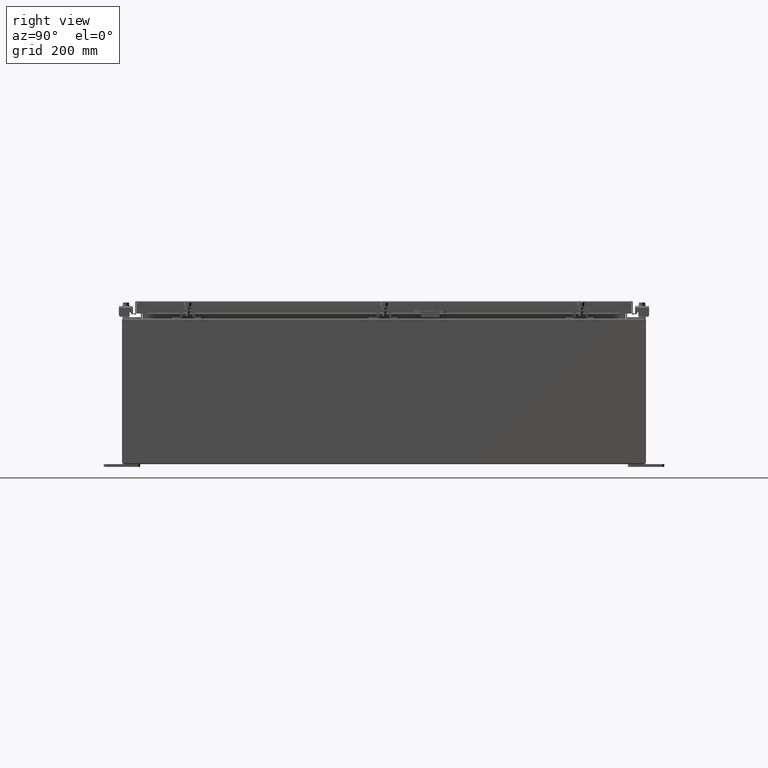
[diagram: clean part render]
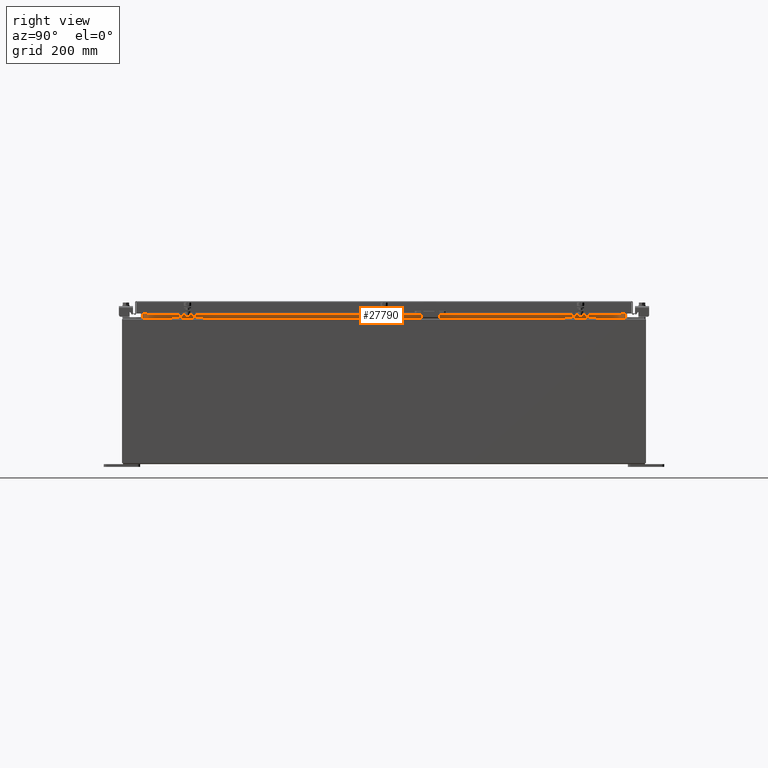
[diagram: same view with one face highlighted and labeled with its STEP entity id]
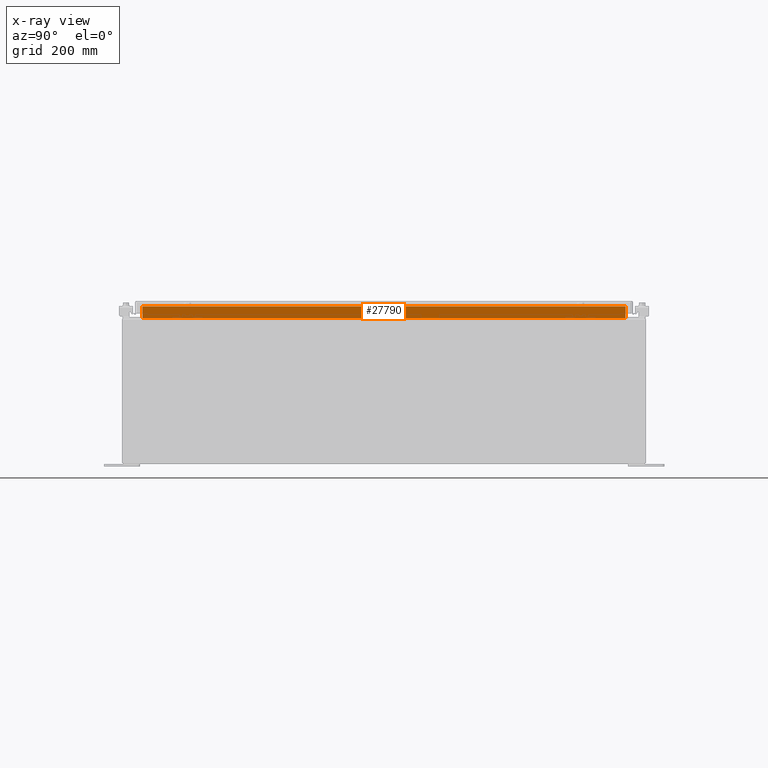
[diagram: x-ray of the same camera — body ghosted, the highlighted face saturated]
A machine part, right view. The second image highlights one B-rep face of the part: STEP entity #27790.
The next image is the same camera in x-ray: the body ghosted, the highlighted face saturated — about 0% of this face is hidden behind the body in this view.
In plain terms, the highlighted planar face has unit normal (1, 0, -0).
Its self-contained STEP definition (entity closure, byte-faithful):
#146 = VECTOR ( 'NONE', #609, 39.37007874015748100 ) ;
#609 = DIRECTION ( 'NONE',  ( 6.585245634444928200E-017, -1.000000000000000000, 1.317049126888985600E-016 ) ) ;
#1458 = VERTEX_POINT ( 'NONE', #22474 ) ;
#6247 = ORIENTED_EDGE ( 'NONE', *, *, #11522, .F. ) ;
#6553 = ORIENTED_EDGE ( 'NONE', *, *, #31124, .F. ) ;
#6592 = CARTESIAN_POINT ( 'NONE',  ( 13.69970000000003400, 16.59375000000000000, 9.925300000000008900 ) ) ;
#6855 = DIRECTION ( 'NONE',  ( -2.361913319930193300E-015, -0.0000000000000000000, -1.000000000000000000 ) ) ;
#8977 = LINE ( 'NONE', #13877, #146 ) ;
#10263 = DIRECTION ( 'NONE',  ( 2.361913319930198800E-015, -0.0000000000000000000, 1.000000000000000000 ) ) ;
#11297 = CARTESIAN_POINT ( 'NONE',  ( 13.69970000000001100, 0.0000000000000000000, -3.235750390904769000E-014 ) ) ;
#11348 = CARTESIAN_POINT ( 'NONE',  ( 13.69970000000003600, -16.59375000000000000, 10.85060000000001100 ) ) ;
#11522 = EDGE_CURVE ( 'NONE', #25322, #1458, #27545, .T. ) ;
#13285 = EDGE_CURVE ( 'NONE', #22185, #27103, #26893, .T. ) ;
#13877 = CARTESIAN_POINT ( 'NONE',  ( 13.69970000000003600, 16.59375000000000000, 9.938300000000008800 ) ) ;
#14952 = DIRECTION ( 'NONE',  ( 1.000000000000000000, 0.0000000000000000000, -2.361913319930193300E-015 ) ) ;
#17065 = CARTESIAN_POINT ( 'NONE',  ( 13.69970000000003400, -16.59375000000000000, 10.76290000000001100 ) ) ;
#17208 = ORIENTED_EDGE ( 'NONE', *, *, #28280, .F. ) ;
#18670 = VECTOR ( 'NONE', #10263, 39.37007874015748100 ) ;
#18852 = CARTESIAN_POINT ( 'NONE',  ( 13.69970000000003400, -16.59375000000000000, 9.938300000000010600 ) ) ;
#20824 = LINE ( 'NONE', #17065, #38561 ) ;
#22185 = VERTEX_POINT ( 'NONE', #32853 ) ;
#22474 = CARTESIAN_POINT ( 'NONE',  ( 13.69970000000003600, -16.59375000000000000, 10.76290000000001100 ) ) ;
#25322 = VERTEX_POINT ( 'NONE', #18852 ) ;
#25758 = FACE_OUTER_BOUND ( 'NONE', #31508, .T. ) ;
#26893 = LINE ( 'NONE', #6592, #34723 ) ;
#26960 = DIRECTION ( 'NONE',  ( 0.0000000000000000000, 1.000000000000000000, 0.0000000000000000000 ) ) ;
#27103 = VERTEX_POINT ( 'NONE', #37911 ) ;
#27545 = LINE ( 'NONE', #11348, #18670 ) ;
#27790 = ADVANCED_FACE ( 'NONE', ( #25758 ), #28231, .T. ) ;
#28231 = PLANE ( 'NONE',  #41890 ) ;
#28280 = EDGE_CURVE ( 'NONE', #27103, #25322, #8977, .T. ) ;
#28651 = ORIENTED_EDGE ( 'NONE', *, *, #13285, .F. ) ;
#31124 = EDGE_CURVE ( 'NONE', #1458, #22185, #20824, .T. ) ;
#31508 = EDGE_LOOP ( 'NONE', ( #28651, #6553, #6247, #17208 ) ) ;
#32853 = CARTESIAN_POINT ( 'NONE',  ( 13.69970000000003400, 16.59375000000000000, 10.76290000000001100 ) ) ;
#34723 = VECTOR ( 'NONE', #6855, 39.37007874015748100 ) ;
#37911 = CARTESIAN_POINT ( 'NONE',  ( 13.69970000000003400, 16.59375000000000000, 9.938300000000010600 ) ) ;
#38294 = DIRECTION ( 'NONE',  ( -2.361913319930193300E-015, 0.0000000000000000000, -1.000000000000000000 ) ) ;
#38561 = VECTOR ( 'NONE', #26960, 39.37007874015748100 ) ;
#41890 = AXIS2_PLACEMENT_3D ( 'NONE', #11297, #14952, #38294 ) ;